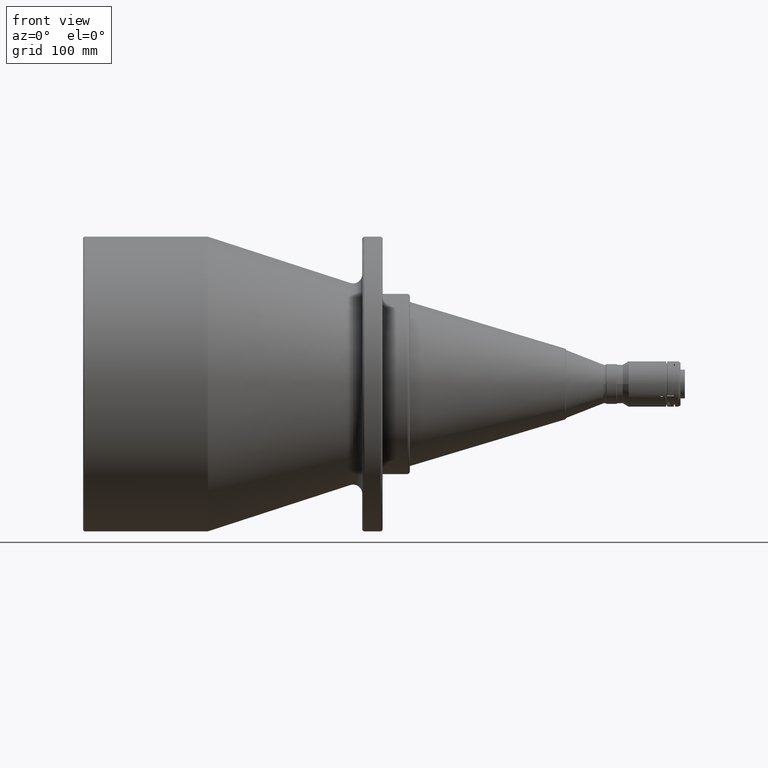
[diagram: clean part render]
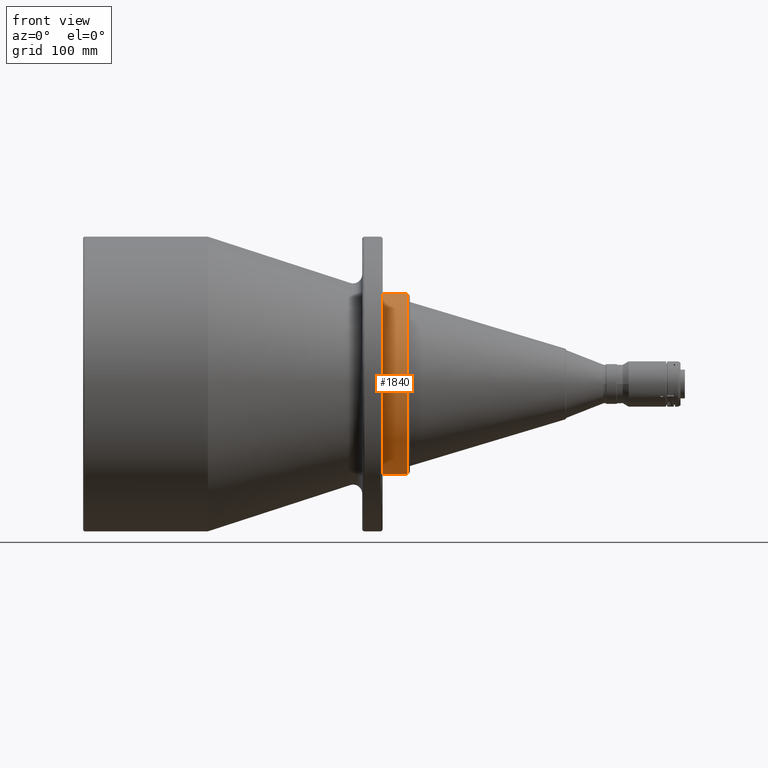
[diagram: same view with one face highlighted and labeled with its STEP entity id]
A machine part, front view. The second image highlights one B-rep face of the part: STEP entity #1840.
In plain terms, the highlighted cylindrical surface (partial cylindrical patch) has radius 79.5 mm, axis along (-1, 0, 0).
Its self-contained STEP definition (entity closure, byte-faithful):
#65 = DIRECTION ( 'NONE',  ( 1.000000000000000000, -0.0000000000000000000, -0.0000000000000000000 ) ) ;
#129 = AXIS2_PLACEMENT_3D ( 'NONE', #915, #2934, #3451 ) ;
#132 = VERTEX_POINT ( 'NONE', #2247 ) ;
#549 = FACE_OUTER_BOUND ( 'NONE', #2750, .T. ) ;
#612 = LINE ( 'NONE', #3452, #4806 ) ;
#736 = ORIENTED_EDGE ( 'NONE', *, *, #6450, .T. ) ;
#756 = DIRECTION ( 'NONE',  ( -1.000000000000000000, 0.0000000000000000000, 0.0000000000000000000 ) ) ;
#883 = CIRCLE ( 'NONE', #4977, 79.49999999999998600 ) ;
#915 = CARTESIAN_POINT ( 'NONE',  ( 264.3000000000000100, 0.0000000000000000000, 0.0000000000000000000 ) ) ;
#1403 = DIRECTION ( 'NONE',  ( -1.000000000000000000, 0.0000000000000000000, 0.0000000000000000000 ) ) ;
#1547 = ORIENTED_EDGE ( 'NONE', *, *, #6669, .F. ) ;
#1588 = EDGE_CURVE ( 'NONE', #3464, #132, #1613, .T. ) ;
#1613 = CIRCLE ( 'NONE', #2433, 79.49999999999998600 ) ;
#1767 = CIRCLE ( 'NONE', #129, 79.50000000000000000 ) ;
#1786 = VERTEX_POINT ( 'NONE', #3308 ) ;
#1840 = ADVANCED_FACE ( 'NONE', ( #549 ), #3940, .T. ) ;
#2247 = CARTESIAN_POINT ( 'NONE',  ( 286.3000000010000600, -7.404802965720683100, -79.15439907564892500 ) ) ;
#2433 = AXIS2_PLACEMENT_3D ( 'NONE', #4616, #6277, #5718 ) ;
#2435 = VERTEX_POINT ( 'NONE', #3567 ) ;
#2588 = CARTESIAN_POINT ( 'NONE',  ( 286.3000000010000600, 9.735942053221458500E-015, -79.50000000000000000 ) ) ;
#2626 = DIRECTION ( 'NONE',  ( 0.0000000000000000000, -1.000000000000000000, 0.0000000000000000000 ) ) ;
#2750 = EDGE_LOOP ( 'NONE', ( #4745, #1547, #5914, #4831, #736 ) ) ;
#2934 = DIRECTION ( 'NONE',  ( 1.000000000000000000, -0.0000000000000000000, -0.0000000000000000000 ) ) ;
#3150 = CARTESIAN_POINT ( 'NONE',  ( 286.3000000010000600, 0.0000000000000000000, 79.50000000000000000 ) ) ;
#3308 = CARTESIAN_POINT ( 'NONE',  ( 286.3000000010000600, 9.735942053221458500E-015, -79.50000000000000000 ) ) ;
#3451 = DIRECTION ( 'NONE',  ( 0.0000000000000000000, 0.0000000000000000000, 1.000000000000000000 ) ) ;
#3452 = CARTESIAN_POINT ( 'NONE',  ( 286.3000000010000600, 0.0000000000000000000, 79.50000000000000000 ) ) ;
#3464 = VERTEX_POINT ( 'NONE', #3150 ) ;
#3567 = CARTESIAN_POINT ( 'NONE',  ( 264.3000000000000100, 9.735942053221458500E-015, -79.50000000000000000 ) ) ;
#3600 = DIRECTION ( 'NONE',  ( -1.000000000000000000, 0.0000000000000000000, 0.0000000000000000000 ) ) ;
#3724 = CARTESIAN_POINT ( 'NONE',  ( 264.3000000000000100, 0.0000000000000000000, 79.50000000000000000 ) ) ;
#3769 = VECTOR ( 'NONE', #3600, 1000.000000000000000 ) ;
#3940 = CYLINDRICAL_SURFACE ( 'NONE', #4326, 79.50000000000000000 ) ;
#4164 = EDGE_CURVE ( 'NONE', #3464, #6637, #612, .T. ) ;
#4326 = AXIS2_PLACEMENT_3D ( 'NONE', #5398, #756, #4359 ) ;
#4359 = DIRECTION ( 'NONE',  ( 0.0000000000000000000, 0.0000000000000000000, 1.000000000000000000 ) ) ;
#4616 = CARTESIAN_POINT ( 'NONE',  ( 286.3000000010000600, 0.0000000000000000000, 0.0000000000000000000 ) ) ;
#4745 = ORIENTED_EDGE ( 'NONE', *, *, #6048, .F. ) ;
#4806 = VECTOR ( 'NONE', #1403, 1000.000000000000000 ) ;
#4831 = ORIENTED_EDGE ( 'NONE', *, *, #4164, .T. ) ;
#4977 = AXIS2_PLACEMENT_3D ( 'NONE', #5720, #65, #2626 ) ;
#5398 = CARTESIAN_POINT ( 'NONE',  ( 286.3000000010000600, 0.0000000000000000000, 0.0000000000000000000 ) ) ;
#5718 = DIRECTION ( 'NONE',  ( 0.0000000000000000000, -1.000000000000000000, 0.0000000000000000000 ) ) ;
#5720 = CARTESIAN_POINT ( 'NONE',  ( 286.3000000010000600, 0.0000000000000000000, 0.0000000000000000000 ) ) ;
#5914 = ORIENTED_EDGE ( 'NONE', *, *, #1588, .F. ) ;
#6048 = EDGE_CURVE ( 'NONE', #1786, #2435, #6473, .T. ) ;
#6277 = DIRECTION ( 'NONE',  ( 1.000000000000000000, -0.0000000000000000000, -0.0000000000000000000 ) ) ;
#6450 = EDGE_CURVE ( 'NONE', #6637, #2435, #1767, .T. ) ;
#6473 = LINE ( 'NONE', #2588, #3769 ) ;
#6637 = VERTEX_POINT ( 'NONE', #3724 ) ;
#6669 = EDGE_CURVE ( 'NONE', #132, #1786, #883, .T. ) ;